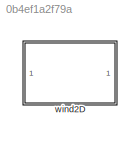
MODEL slx_0b4ef1a2f79a
KIND library
CONFIG AbsTol = auto
CONFIG EnableMultiTasking = off
CONFIG FixedStep = auto
CONFIG MaxStep = auto
CONFIG MinStep = auto
CONFIG RelTol = 1e-3
CONFIG SampleTimeConstraint = Unconstrained
CONFIG Solver = VariableStepAuto
CONFIG SolverName = VariableStepAuto
CONFIG StartTime = 0.0
CONFIG StopTime = 10.0
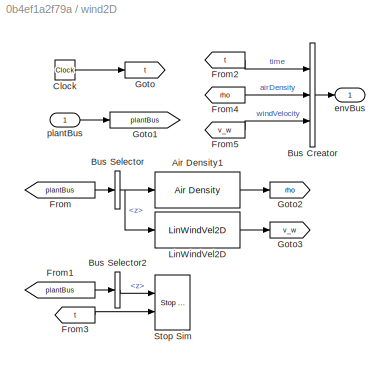
BLOCK [SubSystem] wind2D
  Ports = [1, 1]
  RequestExecContextInheritance = off
BLOCK [Reference] wind2D/Air Density1  REF=AirDensity_ul/Air Density
  Ports = [1, 1]
  SourceBlock = AirDensity_ul/Air Density
BLOCK [BusCreator] wind2D/Bus Creator
  DisplayOption = bar
  InheritFromInputs = on
  Inputs = 3
  Ports = [3, 1]
BLOCK [BusSelector] wind2D/Bus Selector
  OutputSignals = z
  Ports = [1, 1]
BLOCK [BusSelector] wind2D/Bus Selector2
  OutputSignals = z
  Ports = [1, 1]
BLOCK [Clock] wind2D/Clock
BLOCK [From] wind2D/From
  GotoTag = plantBus
BLOCK [From] wind2D/From1
  GotoTag = plantBus
BLOCK [From] wind2D/From2
  GotoTag = t
BLOCK [From] wind2D/From3
  GotoTag = t
BLOCK [From] wind2D/From4
  GotoTag = rho
BLOCK [From] wind2D/From5
  GotoTag = v_w
BLOCK [Goto] wind2D/Goto
  GotoTag = t
BLOCK [Goto] wind2D/Goto1
  GotoTag = plantBus
BLOCK [Goto] wind2D/Goto2
  GotoTag = rho
BLOCK [Goto] wind2D/Goto3
  GotoTag = v_w
BLOCK [Reference] wind2D/LinWindVel2D  REF=LinWindVel2D_ul/LinWindVel2D
  Ports = [1, 1]
  SourceBlock = LinWindVel2D_ul/LinWindVel2D
BLOCK [Reference] wind2D/Stop Sim  REF=StopSim_ul/Stop Sim
  Ports = [2]
  SourceBlock = StopSim_ul/Stop Sim
BLOCK [Outport] wind2D/envBus
  VectorParamsAs1DForOutWhenUnconnected = off
BLOCK [Inport] wind2D/plantBus
LINE wind2D/Air Density1:1 -> wind2D/Goto2:1
LINE wind2D/Bus Creator:1 -> wind2D/envBus:1
LINE wind2D/Bus Selector2:1 -> wind2D/Stop Sim:1
NET wind2D/Bus Selector:1 -> wind2D/Air Density1:1, wind2D/LinWindVel2D:1
LINE wind2D/Clock:1 -> wind2D/Goto:1
LINE wind2D/From1:1 -> wind2D/Bus Selector2:1
LINE wind2D/From2:1 -> wind2D/Bus Creator:1
LINE wind2D/From3:1 -> wind2D/Stop Sim:2
LINE wind2D/From4:1 -> wind2D/Bus Creator:2
LINE wind2D/From5:1 -> wind2D/Bus Creator:3
LINE wind2D/From:1 -> wind2D/Bus Selector:1
LINE wind2D/LinWindVel2D:1 -> wind2D/Goto3:1
LINE wind2D/plantBus:1 -> wind2D/Goto1:1
note: NET lines group one-source signal fan-out (src -> all destinations, sorted); 1:1 wires keep LINE
